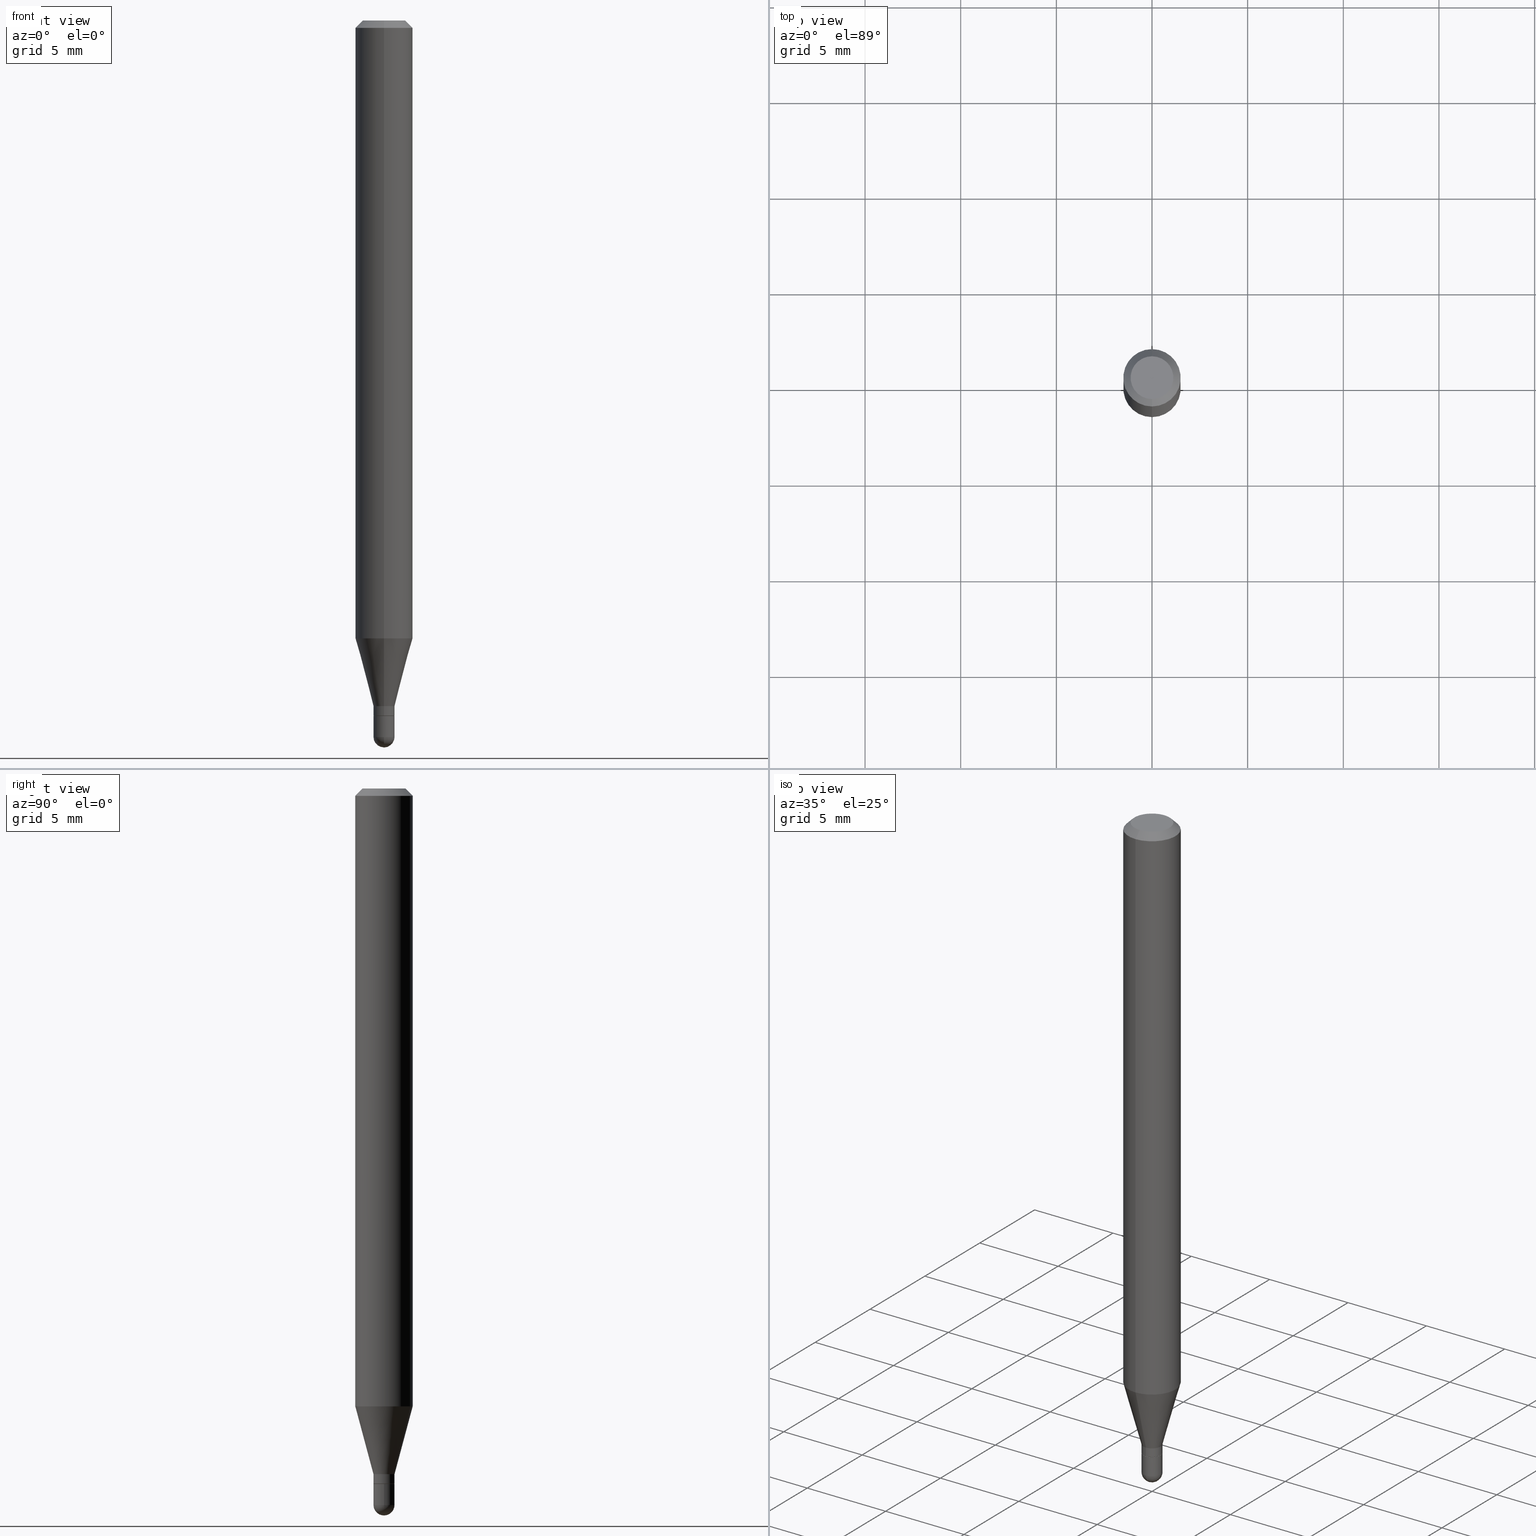
[diagram: canonical four-view strip — front | top / right | iso, engineering-drawing reading convention]
A machine part, canonical four-view strip (front | top / right | iso — engineering-drawing reading convention). The complete STEP part file that produces these views, byte-faithful:
ISO-10303-21;
HEADER;
FILE_DESCRIPTION (( 'STEP AP203' ),
    '1' );
FILE_NAME ('01928.STEP',
    '2024-03-07T19:44:47',
    ( '' ),
    ( '' ),
    'SwSTEP 2.0',
    'SolidWorks 2023',
    '' );
FILE_SCHEMA (( 'CONFIG_CONTROL_DESIGN' ));
ENDSEC;

DATA;
#1 = VECTOR ( 'NONE', #492, 39.37007874015748143 ) ;
#2 = ORIENTED_EDGE ( 'NONE', *, *, #5, .T. ) ;
#3 = VECTOR ( 'NONE', #393, 39.37007874015748143 ) ;
#4 = AXIS2_PLACEMENT_3D ( 'NONE', #499, #120, #337 ) ;
#5 = EDGE_CURVE ( 'NONE', #225, #342, #131, .T. ) ;
#6 = COORDINATED_UNIVERSAL_TIME_OFFSET ( 5, 0, .BEHIND. ) ;
#7 = FACE_OUTER_BOUND ( 'NONE', #296, .T. ) ;
#8 = DATE_AND_TIME ( #356, #80 ) ;
#9 = DIRECTION ( 'NONE',  ( 1.000000000000000000, -6.982962677686267499E-15, 4.876176775795936353E-29 ) ) ;
#10 = AXIS2_PLACEMENT_3D ( 'NONE', #46, #396, #359 ) ;
#11 = DIRECTION ( 'NONE',  ( -2.445429181695314527E-29, 3.491538083367856532E-15, 1.000000000000000000 ) ) ;
#12 = DIRECTION ( 'NONE',  ( -2.445429181695314527E-29, 3.491538083367856926E-15, 1.000000000000000000 ) ) ;
#13 = APPROVAL_STATUS ( 'not_yet_approved' ) ;
#14 = DIRECTION ( 'NONE',  ( -2.445429181695314527E-29, 3.491538083367856926E-15, 1.000000000000000000 ) ) ;
#15 = DIRECTION ( 'NONE',  ( -2.445429181695314527E-29, 3.491538083367856926E-15, 1.000000000000000000 ) ) ;
#16 = LINE ( 'NONE', #164, #66 ) ;
#17 = DIRECTION ( 'NONE',  ( -6.982962677686265922E-15, -1.000000000000000000, 3.491538083367856532E-15 ) ) ;
#18 = CALENDAR_DATE ( 2024, 7, 3 ) ;
#19 = PRODUCT_DEFINITION ( 'UNKNOWN', '', #382, #316 ) ;
#20 = CARTESIAN_POINT ( 'NONE',  ( 3.605721481279674399E-29, -5.148014660057275794E-15, -1.474449999999999816 ) ) ;
#21 = AXIS2_PLACEMENT_3D ( 'NONE', #447, #88, #78 ) ;
#22 = ORIENTED_EDGE ( 'NONE', *, *, #29, .F. ) ;
#23 = ADVANCED_FACE ( 'NONE', ( #85 ), #106, .T. ) ;
#24 = MECHANICAL_CONTEXT ( 'NONE', #162, 'mechanical' ) ;
#25 = FACE_OUTER_BOUND ( 'NONE', #190, .T. ) ;
#26 = DIRECTION ( 'NONE',  ( -6.982962677686265133E-15, -1.000000000000000000, 0.000000000000000000 ) ) ;
#27 = AXIS2_PLACEMENT_3D ( 'NONE', #309, #417, #374 ) ;
#28 = DIRECTION ( 'NONE',  ( -2.445429181695314527E-29, 3.491538083367856926E-15, 1.000000000000000000 ) ) ;
#29 = EDGE_CURVE ( 'NONE', #213, #342, #39, .T. ) ;
#30 = DIRECTION ( 'NONE',  ( -2.445468806185136597E-29, 3.491481338843145583E-15, 1.000000000000000000 ) ) ;
#31 = VERTEX_POINT ( 'NONE', #189 ) ;
#32 = ORIENTED_EDGE ( 'NONE', *, *, #261, .T. ) ;
#33 = AXIS2_PLACEMENT_3D ( 'NONE', #175, #102, #397 ) ;
#34 = ORIENTED_EDGE ( 'NONE', *, *, #267, .T. ) ;
#35 = VERTEX_POINT ( 'NONE', #158 ) ;
#36 = EDGE_CURVE ( 'NONE', #225, #478, #443, .T. ) ;
#37 = AXIS2_PLACEMENT_3D ( 'NONE', #511, #299, #145 ) ;
#38 = SECURITY_CLASSIFICATION ( '', '', #271 ) ;
#39 = LINE ( 'NONE', #200, #412 ) ;
#40 = DIRECTION ( 'NONE',  ( 1.000000000000000000, -6.982962677686270655E-15, 0.000000000000000000 ) ) ;
#41 = PERSON_AND_ORGANIZATION_ROLE ( 'design_supplier' ) ;
#42 = DIRECTION ( 'NONE',  ( -2.445429181695314527E-29, 3.491538083367856926E-15, 1.000000000000000000 ) ) ;
#43 = DIRECTION ( 'NONE',  ( -2.445429181695314527E-29, 3.491538083367856532E-15, 1.000000000000000000 ) ) ;
#44 = CARTESIAN_POINT ( 'NONE',  ( -4.123439461173736383E-16, -0.05905000000000005383, -0.01499999999999981730 ) ) ;
#45 = DIRECTION ( 'NONE',  ( -1.000000000000000000, 6.982962677686265922E-15, -4.883557194083112340E-29 ) ) ;
#46 = CARTESIAN_POINT ( 'NONE',  ( 3.668143772542977098E-31, -5.237307125051793302E-17, -0.01500000000000002373 ) ) ;
#47 = DIRECTION ( 'NONE',  ( -6.982962677686265133E-15, -1.000000000000000000, 0.000000000000000000 ) ) ;
#48 = CIRCLE ( 'NONE', #280, 0.05904999999999999832 ) ;
#49 = DIRECTION ( 'NONE',  ( -6.982962677686265133E-15, -1.000000000000000000, 3.491538083367856532E-15 ) ) ;
#50 = DIRECTION ( 'NONE',  ( 1.000000000000000000, -6.982962677686269866E-15, 0.000000000000000000 ) ) ;
#51 = CARTESIAN_POINT ( 'NONE',  ( 3.499653701924164183E-29, -4.996740151107738983E-15, -1.431100000000000039 ) ) ;
#52 = APPROVAL_ROLE ( '' ) ;
#53 = VERTEX_POINT ( 'NONE', #93 ) ;
#54 = DIRECTION ( 'NONE',  ( 4.937700262164548042E-15, 0.7071067811865451302, -0.7071067811865499042 ) ) ;
#55 = CC_DESIGN_PERSON_AND_ORGANIZATION_ASSIGNMENT ( #391, #41, ( #382 ) ) ;
#56 = FACE_OUTER_BOUND ( 'NONE', #96, .T. ) ;
#57 = CARTESIAN_POINT ( 'NONE',  ( 3.603870046263601126E-29, -5.150666020377430166E-15, -1.474449999999999816 ) ) ;
#58 = CARTESIAN_POINT ( 'NONE',  ( 3.499653701924164183E-29, -4.996740151107738983E-15, -1.431100000000000039 ) ) ;
#59 = DIRECTION ( 'NONE',  ( -2.445468806185136597E-29, 3.491481338843145583E-15, 1.000000000000000000 ) ) ;
#60 = EDGE_CURVE ( 'NONE', #347, #104, #451, .T. ) ;
#61 = CIRCLE ( 'NONE', #399, 0.04404999999999999888 ) ;
#62 = VERTEX_POINT ( 'NONE', #450 ) ;
#63 = DIRECTION ( 'NONE',  ( 6.982962677686265922E-15, 1.000000000000000000, -3.505890868245046092E-15 ) ) ;
#64 = ORIENTED_EDGE ( 'NONE', *, *, #36, .T. ) ;
#65 = CARTESIAN_POINT ( 'NONE',  ( -4.123439461173739834E-16, -0.05904999999999999832, 2.061753238228719465E-16 ) ) ;
#66 = VECTOR ( 'NONE', #170, 39.37007874015748143 ) ;
#67 = CARTESIAN_POINT ( 'NONE',  ( 4.195754854663703572E-16, 0.05904999999999994281, -0.01500000000000023016 ) ) ;
#68 = ORIENTED_EDGE ( 'NONE', *, *, #267, .F. ) ;
#69 = SHAPE_DEFINITION_REPRESENTATION ( #166, #434 ) ;
#70 = ORIENTED_EDGE ( 'NONE', *, *, #349, .F. ) ;
#71 = DIRECTION ( 'NONE',  ( 1.000000000000000000, 0.000000000000000000, 0.000000000000000000 ) ) ;
#72 = AXIS2_PLACEMENT_3D ( 'NONE', #201, #291, #123 ) ;
#73 = ORIENTED_EDGE ( 'NONE', *, *, #221, .T. ) ;
#74 = PERSON_AND_ORGANIZATION ( #362, #245 ) ;
#75 = EDGE_CURVE ( 'NONE', #463, #347, #247, .T. ) ;
#76 = VECTOR ( 'NONE', #11, 39.37007874015748143 ) ;
#77 = AXIS2_PLACEMENT_3D ( 'NONE', #326, #45, #488 ) ;
#78 = DIRECTION ( 'NONE',  ( 7.105427357601001070E-15, 1.000000000000000000, 0.000000000000000000 ) ) ;
#79 = DATE_AND_TIME ( #18, #308 ) ;
#80 = LOCAL_TIME ( 14, 44, 47.00000000000000000, #83 ) ;
#81 = EDGE_CURVE ( 'NONE', #304, #62, #323, .T. ) ;
#82 = DIRECTION ( 'NONE',  ( -2.445429181695314527E-29, 3.491538083367856926E-15, 1.000000000000000000 ) ) ;
#83 = COORDINATED_UNIVERSAL_TIME_OFFSET ( 5, 0, .BEHIND. ) ;
#84 = ORIENTED_EDGE ( 'NONE', *, *, #421, .F. ) ;
#85 = FACE_OUTER_BOUND ( 'NONE', #300, .T. ) ;
#86 = DIRECTION ( 'NONE',  ( -2.445468806185136597E-29, 3.491481338843145583E-15, 1.000000000000000000 ) ) ;
#87 = CARTESIAN_POINT ( 'NONE',  ( 3.109415291670556053E-29, -4.439565042054361610E-15, -1.271521299796924742 ) ) ;
#88 = DIRECTION ( 'NONE',  ( 1.000000000000000000, -7.105427357601001070E-15, 4.926315508542082329E-29 ) ) ;
#89 = PERSON_AND_ORGANIZATION ( #362, #245 ) ;
#90 = DIRECTION ( 'NONE',  ( -2.445468806185136597E-29, 3.491481338843145583E-15, 1.000000000000000000 ) ) ;
#91 = CARTESIAN_POINT ( 'NONE',  ( -1.476896606330294964E-16, -0.02115000000000499467, -1.431100000000000039 ) ) ;
#92 = PLANE ( 'NONE',  #439 ) ;
#93 = CARTESIAN_POINT ( 'NONE',  ( -1.511811419718711477E-16, -0.02165000000000508185, -1.474449999999999816 ) ) ;
#94 = ADVANCED_FACE ( 'NONE', ( #330 ), #253, .T. ) ;
#95 = DIRECTION ( 'NONE',  ( 6.982962677686265922E-15, 1.000000000000000000, -3.491538083367856532E-15 ) ) ;
#96 = EDGE_LOOP ( 'NONE', ( #84, #427, #344, #68 ) ) ;
#97 = ORIENTED_EDGE ( 'NONE', *, *, #239, .T. ) ;
#98 = CARTESIAN_POINT ( 'NONE',  ( 3.668143772542977098E-31, -5.237307125051793302E-17, -0.01500000000000002373 ) ) ;
#99 = CONICAL_SURFACE ( 'NONE', #381, 0.02114999999999999519, 0.7853981633974739252 ) ;
#100 = AXIS2_PLACEMENT_3D ( 'NONE', #406, #208, #167 ) ;
#101 = ORIENTED_EDGE ( 'NONE', *, *, #239, .F. ) ;
#102 = DIRECTION ( 'NONE',  ( -2.445468806185136597E-29, 3.491481338843145583E-15, 1.000000000000000000 ) ) ;
#103 = ORIENTED_EDGE ( 'NONE', *, *, #479, .F. ) ;
#104 = VERTEX_POINT ( 'NONE', #44 ) ;
#105 = ADVANCED_FACE ( 'NONE', ( #292 ), #99, .T. ) ;
#106 = CONICAL_SURFACE ( 'NONE', #333, 0.02114999999999999519, 0.7853981633974739252 ) ;
#107 = DIRECTION ( 'NONE',  ( -2.445429181695314527E-29, 3.491538083367856532E-15, 1.000000000000000000 ) ) ;
#108 = VECTOR ( 'NONE', #43, 39.37007874015748143 ) ;
#109 = EDGE_LOOP ( 'NONE', ( #317, #274 ) ) ;
#110 = ADVANCED_FACE ( 'NONE', ( #256 ), #159, .T. ) ;
#111 = CARTESIAN_POINT ( 'NONE',  ( -0.02164999999999999217, 1.538325022920616346E-16, -1.064949447040186676E-30 ) ) ;
#112 = UNCERTAINTY_MEASURE_WITH_UNIT (LENGTH_MEASURE( 1.000000000000000082E-05 ), #269, 'distance_accuracy_value', 'NONE');
#113 = VERTEX_POINT ( 'NONE', #481 ) ;
#114 = ORIENTED_EDGE ( 'NONE', *, *, #479, .T. ) ;
#115 = CIRCLE ( 'NONE', #77, 0.02164999999999987421 ) ;
#116 = ORIENTED_EDGE ( 'NONE', *, *, #118, .F. ) ;
#117 = PRODUCT_RELATED_PRODUCT_CATEGORY ( 'detail', '', ( #302 ) ) ;
#118 = EDGE_CURVE ( 'NONE', #104, #347, #380, .T. ) ;
#119 = CIRCLE ( 'NONE', #350, 0.02164999999999999217 ) ;
#120 = DIRECTION ( 'NONE',  ( -2.445429181695314527E-29, 3.491538083367856926E-15, 1.000000000000000000 ) ) ;
#121 = DIRECTION ( 'NONE',  ( 5.024295867788190974E-15, 0.7071067811865681119, 0.7071067811865270336 ) ) ;
#122 = ORIENTED_EDGE ( 'NONE', *, *, #221, .F. ) ;
#123 = DIRECTION ( 'NONE',  ( -6.982962677686265133E-15, -1.000000000000000000, 0.000000000000000000 ) ) ;
#124 = CARTESIAN_POINT ( 'NONE',  ( 3.668143772542977098E-31, -5.237307125051793302E-17, -0.01500000000000002373 ) ) ;
#125 = LINE ( 'NONE', #286, #1 ) ;
#126 = CARTESIAN_POINT ( 'NONE',  ( 3.498430987333316827E-29, -4.994994382066056232E-15, -1.430600000000000094 ) ) ;
#127 = APPROVAL_STATUS ( 'not_yet_approved' ) ;
#128 = ADVANCED_FACE ( 'NONE', ( #319 ), #355, .T. ) ;
#129 = ADVANCED_FACE ( 'NONE', ( #7 ), #343, .T. ) ;
#130 = CARTESIAN_POINT ( 'NONE',  ( 1.520561454526960924E-16, 0.02114999999999499572, -1.431100000000000039 ) ) ;
#131 = CIRCLE ( 'NONE', #153, 0.02164999999999991931 ) ;
#132 = VECTOR ( 'NONE', #107, 39.37007874015748143 ) ;
#133 = APPROVAL_PERSON_ORGANIZATION ( #139, #182, #298 ) ;
#134 = CARTESIAN_POINT ( 'NONE',  ( 3.599717260347271507E-16, 0.04404999999999999888, -1.776619958574267204E-16 ) ) ;
#135 = DIRECTION ( 'NONE',  ( 2.445429181695314527E-29, -3.491538083367856926E-15, -1.000000000000000000 ) ) ;
#136 = DIRECTION ( 'NONE',  ( -2.445429181695314527E-29, 3.491538083367856926E-15, 1.000000000000000000 ) ) ;
#137 = ORIENTED_EDGE ( 'NONE', *, *, #349, .T. ) ;
#138 = FACE_OUTER_BOUND ( 'NONE', #474, .T. ) ;
#139 = PERSON_AND_ORGANIZATION ( #362, #245 ) ;
#140 = PLANE ( 'NONE',  #255 ) ;
#141 = ORIENTED_EDGE ( 'NONE', *, *, #75, .F. ) ;
#142 = AXIS2_PLACEMENT_3D ( 'NONE', #57, #390, #493 ) ;
#143 = ORIENTED_EDGE ( 'NONE', *, *, #363, .F. ) ;
#144 = EDGE_CURVE ( 'NONE', #213, #251, #154, .T. ) ;
#145 = DIRECTION ( 'NONE',  ( -6.982962677686266711E-15, -1.000000000000000000, 3.491538083367856926E-15 ) ) ;
#146 = EDGE_CURVE ( 'NONE', #342, #225, #413, .T. ) ;
#147 = EDGE_LOOP ( 'NONE', ( #507, #383, #116, #314 ) ) ;
#148 = APPROVAL_DATE_TIME ( #348, #182 ) ;
#149 = ADVANCED_FACE ( 'NONE', ( #281 ), #205, .T. ) ;
#150 = AXIS2_PLACEMENT_3D ( 'NONE', #501, #90, #171 ) ;
#151 = ORIENTED_EDGE ( 'NONE', *, *, #146, .T. ) ;
#152 = ORIENTED_EDGE ( 'NONE', *, *, #144, .F. ) ;
#153 = AXIS2_PLACEMENT_3D ( 'NONE', #352, #42, #486 ) ;
#154 = CIRCLE ( 'NONE', #4, 0.02114999999999999519 ) ;
#155 = CC_DESIGN_PERSON_AND_ORGANIZATION_ASSIGNMENT ( #231, #235, ( #382 ) ) ;
#156 = DATE_AND_TIME ( #288, #335 ) ;
#157 = CARTESIAN_POINT ( 'NONE',  ( 0.000000000000000000, 0.000000000000000000, 0.000000000000000000 ) ) ;
#158 = CARTESIAN_POINT ( 'NONE',  ( -3.536586717851222218E-16, -0.04404999999999999888, 1.299425092872814422E-16 ) ) ;
#159 = CONICAL_SURFACE ( 'NONE', #227, 0.05904999999999999832, 0.7853981633974483900 ) ;
#160 = ORIENTED_EDGE ( 'NONE', *, *, #197, .F. ) ;
#161 = VECTOR ( 'NONE', #54, 39.37007874015748143 ) ;
#162 = APPLICATION_CONTEXT ( 'configuration controlled 3d designs of mechanical parts and assemblies' ) ;
#163 = CIRCLE ( 'NONE', #358, 0.02165000000000018993 ) ;
#164 = CARTESIAN_POINT ( 'NONE',  ( -1.476896606330294964E-16, -0.02115000000000499467, -1.431100000000000039 ) ) ;
#165 = CC_DESIGN_APPROVAL ( #182, ( #38 ) ) ;
#166 = PRODUCT_DEFINITION_SHAPE ( 'NONE', 'NONE',  #19 ) ;
#167 = DIRECTION ( 'NONE',  ( -6.982962677686266711E-15, -1.000000000000000000, 3.491538083367856926E-15 ) ) ;
#168 = COORDINATED_UNIVERSAL_TIME_OFFSET ( 5, 0, .BEHIND. ) ;
#169 = ADVANCED_FACE ( 'NONE', ( #441 ), #211, .T. ) ;
#170 = DIRECTION ( 'NONE',  ( -4.937700262164674260E-15, -0.7071067811865632269, 0.7071067811865319186 ) ) ;
#171 = DIRECTION ( 'NONE',  ( 1.000000000000000000, -6.982962677686267499E-15, 4.876176775795936353E-29 ) ) ;
#172 = DIRECTION ( 'NONE',  ( -6.982962677686265133E-15, -1.000000000000000000, 0.000000000000000000 ) ) ;
#173 = COORDINATED_UNIVERSAL_TIME_OFFSET ( 5, 0, .BEHIND. ) ;
#174 = CIRCLE ( 'NONE', #72, 0.02165000000000018993 ) ;
#175 = CARTESIAN_POINT ( 'NONE',  ( 3.499710408531548465E-29, -4.996658944018425519E-15, -1.431100000000000039 ) ) ;
#176 = ORIENTED_EDGE ( 'NONE', *, *, #421, .T. ) ;
#177 = DIRECTION ( 'NONE',  ( -2.445429181695314527E-29, 3.491538083367856926E-15, 1.000000000000000000 ) ) ;
#178 = LINE ( 'NONE', #341, #194 ) ;
#179 = ORIENTED_EDGE ( 'NONE', *, *, #331, .T. ) ;
#180 = DIMENSIONAL_EXPONENTS ( 1.000000000000000000, 0.000000000000000000, 0.000000000000000000, 0.000000000000000000, 0.000000000000000000, 0.000000000000000000, 0.000000000000000000 ) ;
#181 = DIRECTION ( 'NONE',  ( -1.000000000000000000, 6.982962677686265922E-15, -4.876176775795935793E-29 ) ) ;
#182 = APPROVAL ( #13, 'UNSPECIFIED' ) ;
#183 = EDGE_LOOP ( 'NONE', ( #143, #466, #34, #192, #122 ) ) ;
#184 = CARTESIAN_POINT ( 'NONE',  ( 1.511811419719426382E-16, 0.02164999999999499963, -1.431100000000000039 ) ) ;
#185 = EDGE_CURVE ( 'NONE', #240, #31, #376, .T. ) ;
#186 = DIRECTION ( 'NONE',  ( 1.000000000000000000, -6.982962677686270655E-15, 0.000000000000000000 ) ) ;
#187 = VERTEX_POINT ( 'NONE', #370 ) ;
#188 = AXIS2_PLACEMENT_3D ( 'NONE', #498, #293, #95 ) ;
#189 = CARTESIAN_POINT ( 'NONE',  ( -4.123439461173429220E-16, -0.05905000000000444615, -1.271521299796924298 ) ) ;
#190 = EDGE_LOOP ( 'NONE', ( #114, #73 ) ) ;
#191 = APPLICATION_PROTOCOL_DEFINITION ( 'international standard', 'config_control_design', 1994, #162 ) ;
#192 = ORIENTED_EDGE ( 'NONE', *, *, #81, .T. ) ;
#193 = ORIENTED_EDGE ( 'NONE', *, *, #233, .F. ) ;
#194 = VECTOR ( 'NONE', #469, 39.37007874015748854 ) ;
#195 = CC_DESIGN_DATE_AND_TIME_ASSIGNMENT ( #361, #502, ( #38 ) ) ;
#196 = EDGE_LOOP ( 'NONE', ( #418, #410, #379, #338 ) ) ;
#197 = EDGE_CURVE ( 'NONE', #476, #187, #452, .T. ) ;
#198 = FACE_OUTER_BOUND ( 'NONE', #444, .T. ) ;
#199 = APPROVAL_ROLE ( '' ) ;
#200 = CARTESIAN_POINT ( 'NONE',  ( 1.502797886132961362E-16, 0.02114999999999499572, -1.431100000000000039 ) ) ;
#201 = CARTESIAN_POINT ( 'NONE',  ( 3.450745118290257068E-29, -4.926909389440380826E-15, -1.411099999999999577 ) ) ;
#202 = DIRECTION ( 'NONE',  ( -1.807323732225328562E-15, -0.2588190451025179639, 0.9659258262890690894 ) ) ;
#203 = AXIS2_PLACEMENT_3D ( 'NONE', #503, #419, #504 ) ;
#204 = AXIS2_PLACEMENT_3D ( 'NONE', #287, #448, #455 ) ;
#205 = CYLINDRICAL_SURFACE ( 'NONE', #100, 0.02165000000000005115 ) ;
#206 = EDGE_CURVE ( 'NONE', #35, #104, #489, .T. ) ;
#207 = FACE_OUTER_BOUND ( 'NONE', #183, .T. ) ;
#208 = DIRECTION ( 'NONE',  ( -2.445429181695314527E-29, 3.491538083367856926E-15, 1.000000000000000000 ) ) ;
#209 = APPROVAL_DATE_TIME ( #156, #320 ) ;
#210 = CARTESIAN_POINT ( 'NONE',  ( 0.02164999999999999217, -1.511811419719076325E-16, 1.055692271959819788E-30 ) ) ;
#211 = CYLINDRICAL_SURFACE ( 'NONE', #228, 0.02164999999999999217 ) ;
#212 = CARTESIAN_POINT ( 'NONE',  ( 3.655888728409472200E-29, -5.227582271523460823E-15, -1.496099999999999541 ) ) ;
#213 = VERTEX_POINT ( 'NONE', #130 ) ;
#214 = VECTOR ( 'NONE', #202, 39.37007874015748854 ) ;
#215 = DIRECTION ( 'NONE',  ( -6.982962677686265922E-15, -1.000000000000000000, 3.491538083367856926E-15 ) ) ;
#216 = APPROVAL_PERSON_ORGANIZATION ( #279, #320, #199 ) ;
#217 = CARTESIAN_POINT ( 'NONE',  ( 3.450745118290257068E-29, -4.926909389440380826E-15, -1.411099999999999577 ) ) ;
#218 = ORIENTED_EDGE ( 'NONE', *, *, #363, .T. ) ;
#219 = AXIS2_PLACEMENT_3D ( 'NONE', #20, #234, #40 ) ;
#220 = CC_DESIGN_SECURITY_CLASSIFICATION ( #38, ( #382 ) ) ;
#221 = EDGE_CURVE ( 'NONE', #351, #62, #263, .T. ) ;
#222 = ORIENTED_EDGE ( 'NONE', *, *, #5, .F. ) ;
#223 = CARTESIAN_POINT ( 'NONE',  ( 3.605721481279674399E-29, -5.148014660057275794E-15, -1.474449999999999816 ) ) ;
#224 = VERTEX_POINT ( 'NONE', #487 ) ;
#225 = VERTEX_POINT ( 'NONE', #236 ) ;
#226 = CC_DESIGN_DATE_AND_TIME_ASSIGNMENT ( #8, #449, ( #19 ) ) ;
#227 = AXIS2_PLACEMENT_3D ( 'NONE', #98, #458, #63 ) ;
#228 = AXIS2_PLACEMENT_3D ( 'NONE', #157, #86, #9 ) ;
#229 = CIRCLE ( 'NONE', #27, 0.02164999999999999217 ) ;
#230 = ORIENTED_EDGE ( 'NONE', *, *, #336, .T. ) ;
#231 = PERSON_AND_ORGANIZATION ( #362, #245 ) ;
#232 = EDGE_CURVE ( 'NONE', #251, #225, #16, .T. ) ;
#233 = EDGE_CURVE ( 'NONE', #240, #347, #322, .T. ) ;
#234 = DIRECTION ( 'NONE',  ( -2.445468806185136597E-29, 3.491481338843145583E-15, 1.000000000000000000 ) ) ;
#235 = PERSON_AND_ORGANIZATION_ROLE ( 'creator' ) ;
#236 = CARTESIAN_POINT ( 'NONE',  ( -1.511811419718726268E-16, -0.02165000000000499164, -1.430600000000000094 ) ) ;
#237 = APPROVAL_DATE_TIME ( #79, #414 ) ;
#238 = DIRECTION ( 'NONE',  ( -6.982962677686266711E-15, -1.000000000000000000, 0.000000000000000000 ) ) ;
#239 = EDGE_CURVE ( 'NONE', #478, #113, #174, .T. ) ;
#240 = VERTEX_POINT ( 'NONE', #454 ) ;
#241 = CARTESIAN_POINT ( 'NONE',  ( 3.499653701924164183E-29, -4.996740151107738983E-15, -1.431100000000000039 ) ) ;
#242 = CARTESIAN_POINT ( 'NONE',  ( 3.668143772542977098E-31, -5.237307125051793302E-17, -0.01500000000000002373 ) ) ;
#243 = DIRECTION ( 'NONE',  ( -2.445429181695314527E-29, 3.491538083367856926E-15, 1.000000000000000000 ) ) ;
#244 = AXIS2_PLACEMENT_3D ( 'NONE', #242, #135, #436 ) ;
#245 = ORGANIZATION ( 'UNSPECIFIED', 'UNSPECIFIED', '' ) ;
#246 = DIRECTION ( 'NONE',  ( -4.851104656540964275E-15, -0.7071067811865500152, -0.7071067811865450192 ) ) ;
#247 = LINE ( 'NONE', #404, #161 ) ;
#248 = DIRECTION ( 'NONE',  ( 1.000000000000000000, -6.982962677686270655E-15, 0.000000000000000000 ) ) ;
#249 = DIRECTION ( 'NONE',  ( -2.445429181695314527E-29, 3.491538083367856926E-15, 1.000000000000000000 ) ) ;
#250 = DIRECTION ( 'NONE',  ( -2.445429181695314527E-29, 3.491538083367856926E-15, 1.000000000000000000 ) ) ;
#251 = VERTEX_POINT ( 'NONE', #91 ) ;
#252 = LENGTH_MEASURE_WITH_UNIT ( LENGTH_MEASURE( 0.02539999999999999897 ), #407 );
#253 = CYLINDRICAL_SURFACE ( 'NONE', #387, 0.05904999999999999832 ) ;
#254 = ORIENTED_EDGE ( 'NONE', *, *, #424, .F. ) ;
#255 = AXIS2_PLACEMENT_3D ( 'NONE', #184, #259, #181 ) ;
#256 = FACE_OUTER_BOUND ( 'NONE', #196, .T. ) ;
#257 = FACE_OUTER_BOUND ( 'NONE', #306, .T. ) ;
#258 = ORIENTED_EDGE ( 'NONE', *, *, #377, .T. ) ;
#259 = DIRECTION ( 'NONE',  ( 2.438088387897960049E-29, -3.491481338843145188E-15, -1.000000000000000000 ) ) ;
#260 = EDGE_LOOP ( 'NONE', ( #2, #386, #101, #283 ) ) ;
#261 = EDGE_CURVE ( 'NONE', #113, #478, #163, .T. ) ;
#262 = CARTESIAN_POINT ( 'NONE',  ( 0.02164999999999999217, -5.223517944009758388E-15, -1.474449999999999816 ) ) ;
#263 = CIRCLE ( 'NONE', #334, 0.02164999999999999564 ) ;
#264 = CC_DESIGN_APPROVAL ( #414, ( #382 ) ) ;
#265 = EDGE_LOOP ( 'NONE', ( #415, #152 ) ) ;
#266 = DIRECTION ( 'NONE',  ( -2.445468806185136877E-29, 3.491481338843145188E-15, 1.000000000000000000 ) ) ;
#267 = EDGE_CURVE ( 'NONE', #53, #304, #353, .T. ) ;
#268 = ORIENTED_EDGE ( 'NONE', *, *, #369, .F. ) ;
#269 =( CONVERSION_BASED_UNIT ( 'INCH', #252 ) LENGTH_UNIT ( ) NAMED_UNIT ( #180 ) );
#270 = ORIENTED_EDGE ( 'NONE', *, *, #295, .T. ) ;
#271 = SECURITY_CLASSIFICATION_LEVEL ( 'unclassified' ) ;
#272 = VECTOR ( 'NONE', #266, 39.37007874015748143 ) ;
#273 = LOCAL_TIME ( 14, 44, 47.00000000000000000, #168 ) ;
#274 = ORIENTED_EDGE ( 'NONE', *, *, #369, .T. ) ;
#275 = CC_DESIGN_PERSON_AND_ORGANIZATION_ASSIGNMENT ( #437, #442, ( #19 ) ) ;
#276 = ADVANCED_FACE ( 'NONE', ( #198 ), #433, .T. ) ;
#277 = ORIENTED_EDGE ( 'NONE', *, *, #465, .F. ) ;
#278 = ADVANCED_FACE ( 'NONE', ( #25 ), #140, .F. ) ;
#279 = PERSON_AND_ORGANIZATION ( #362, #245 ) ;
#280 = AXIS2_PLACEMENT_3D ( 'NONE', #87, #243, #364 ) ;
#281 = FACE_OUTER_BOUND ( 'NONE', #260, .T. ) ;
#282 = DIRECTION ( 'NONE',  ( -6.982962677686265133E-15, -1.000000000000000000, 3.491538083367856532E-15 ) ) ;
#283 = ORIENTED_EDGE ( 'NONE', *, *, #36, .F. ) ;
#284 = CARTESIAN_POINT ( 'NONE',  ( 3.450745118290257068E-29, -4.926909389440380826E-15, -1.411099999999999577 ) ) ;
#285 = DIRECTION ( 'NONE',  ( -6.982962677686265922E-15, -1.000000000000000000, 3.505890868245046092E-15 ) ) ;
#286 = CARTESIAN_POINT ( 'NONE',  ( 1.538325022920620290E-16, 0.02165000000000005115, -7.559179950491428107E-17 ) ) ;
#287 = CARTESIAN_POINT ( 'NONE',  ( 0.000000000000000000, 0.000000000000000000, 0.000000000000000000 ) ) ;
#288 = CALENDAR_DATE ( 2024, 7, 3 ) ;
#289 = CARTESIAN_POINT ( 'NONE',  ( 3.605721481279674399E-29, -5.148014660057275794E-15, -1.474449999999999816 ) ) ;
#290 = AXIS2_PLACEMENT_3D ( 'NONE', #126, #12, #445 ) ;
#291 = DIRECTION ( 'NONE',  ( -2.445429181695314527E-29, 3.491538083367856926E-15, 1.000000000000000000 ) ) ;
#292 = FACE_OUTER_BOUND ( 'NONE', #420, .T. ) ;
#293 = DIRECTION ( 'NONE',  ( 2.445429181695314247E-29, -3.491538083367856532E-15, -1.000000000000000000 ) ) ;
#294 = DIRECTION ( 'NONE',  ( -2.445429181695314527E-29, 3.491538083367856926E-15, 1.000000000000000000 ) ) ;
#295 = EDGE_CURVE ( 'NONE', #251, #213, #372, .T. ) ;
#296 = EDGE_LOOP ( 'NONE', ( #268, #457, #395, #141 ) ) ;
#297 = ORIENTED_EDGE ( 'NONE', *, *, #377, .F. ) ;
#298 = APPROVAL_ROLE ( '' ) ;
#299 = DIRECTION ( 'NONE',  ( -2.445429181695314527E-29, 3.491538083367856926E-15, 1.000000000000000000 ) ) ;
#300 = EDGE_LOOP ( 'NONE', ( #270, #411, #222, #509 ) ) ;
#301 = VECTOR ( 'NONE', #246, 39.37007874015748143 ) ;
#302 = PRODUCT ( '01928', '01928', '', ( #24 ) ) ;
#303 = CC_DESIGN_APPROVAL ( #320, ( #19 ) ) ;
#304 = VERTEX_POINT ( 'NONE', #262 ) ;
#305 =( NAMED_UNIT ( * ) PLANE_ANGLE_UNIT ( ) SI_UNIT ( $, .RADIAN. ) );
#306 = EDGE_LOOP ( 'NONE', ( #339, #151, #64, #430 ) ) ;
#307 = AXIS2_PLACEMENT_3D ( 'NONE', #217, #28, #26 ) ;
#308 = LOCAL_TIME ( 14, 44, 47.00000000000000000, #367 ) ;
#309 = CARTESIAN_POINT ( 'NONE',  ( 3.605721481279674399E-29, -5.148014660057275794E-15, -1.474449999999999816 ) ) ;
#310 = EDGE_LOOP ( 'NONE', ( #193, #470, #485, #385 ) ) ;
#311 = ORIENTED_EDGE ( 'NONE', *, *, #146, .F. ) ;
#312 = CARTESIAN_POINT ( 'NONE',  ( 0.000000000000000000, 0.000000000000000000, 0.000000000000000000 ) ) ;
#313 = EDGE_CURVE ( 'NONE', #31, #104, #422, .T. ) ;
#314 = ORIENTED_EDGE ( 'NONE', *, *, #313, .F. ) ;
#315 = CIRCLE ( 'NONE', #505, 0.04404999999999999888 ) ;
#316 = DESIGN_CONTEXT ( 'detailed design', #510, 'design' ) ;
#317 = ORIENTED_EDGE ( 'NONE', *, *, #440, .T. ) ;
#318 = ADVANCED_FACE ( 'NONE', ( #257 ), #345, .T. ) ;
#319 = FACE_OUTER_BOUND ( 'NONE', #373, .T. ) ;
#320 = APPROVAL ( #127, 'UNSPECIFIED' ) ;
#321 = AXIS2_PLACEMENT_3D ( 'NONE', #124, #408, #285 ) ;
#322 = LINE ( 'NONE', #329, #108 ) ;
#323 = LINE ( 'NONE', #210, #3 ) ;
#324 = DIRECTION ( 'NONE',  ( 1.000000000000000000, -6.982962677686266711E-15, 4.883557194083113462E-29 ) ) ;
#325 = DIRECTION ( 'NONE',  ( -6.982962677686265922E-15, -1.000000000000000000, 4.626330217890369336E-15 ) ) ;
#326 = CARTESIAN_POINT ( 'NONE',  ( 3.603870046263601126E-29, -5.150666020377430166E-15, -1.474449999999999816 ) ) ;
#327 = DIRECTION ( 'NONE',  ( -6.982962677686266711E-15, -1.000000000000000000, 0.000000000000000000 ) ) ;
#328 = CC_DESIGN_PERSON_AND_ORGANIZATION_ASSIGNMENT ( #74, #384, ( #38 ) ) ;
#329 = CARTESIAN_POINT ( 'NONE',  ( 4.195754854663390985E-16, 0.05904999999999999832, -2.061753238228719465E-16 ) ) ;
#330 = FACE_OUTER_BOUND ( 'NONE', #147, .T. ) ;
#331 = EDGE_CURVE ( 'NONE', #304, #187, #229, .T. ) ;
#332 = PLANE ( 'NONE',  #188 ) ;
#333 = AXIS2_PLACEMENT_3D ( 'NONE', #241, #15, #327 ) ;
#334 = AXIS2_PLACEMENT_3D ( 'NONE', #401, #392, #50 ) ;
#335 = LOCAL_TIME ( 14, 44, 47.00000000000000000, #6 ) ;
#336 = EDGE_CURVE ( 'NONE', #113, #240, #178, .T. ) ;
#337 = DIRECTION ( 'NONE',  ( -6.982962677686266711E-15, -1.000000000000000000, 0.000000000000000000 ) ) ;
#338 = ORIENTED_EDGE ( 'NONE', *, *, #60, .T. ) ;
#339 = ORIENTED_EDGE ( 'NONE', *, *, #423, .F. ) ;
#340 = CALENDAR_DATE ( 2024, 7, 3 ) ;
#341 = CARTESIAN_POINT ( 'NONE',  ( 1.538325022920975278E-16, 0.02164999999999526331, -1.411099999999999577 ) ) ;
#342 = VERTEX_POINT ( 'NONE', #425 ) ;
#343 = CONICAL_SURFACE ( 'NONE', #244, 0.05904999999999999832, 0.7853981633974483900 ) ;
#344 = ORIENTED_EDGE ( 'NONE', *, *, #331, .F. ) ;
#345 = CYLINDRICAL_SURFACE ( 'NONE', #37, 0.02165000000000005115 ) ;
#346 = CARTESIAN_POINT ( 'NONE',  ( -0.02164999999999999564, -4.918504299745789342E-15, -1.431100000000000039 ) ) ;
#347 = VERTEX_POINT ( 'NONE', #67 ) ;
#348 = DATE_AND_TIME ( #512, #273 ) ;
#349 = EDGE_CURVE ( 'NONE', #187, #224, #438, .T. ) ;
#350 = AXIS2_PLACEMENT_3D ( 'NONE', #289, #59, #248 ) ;
#351 = VERTEX_POINT ( 'NONE', #346 ) ;
#352 = CARTESIAN_POINT ( 'NONE',  ( 3.498430987333316827E-29, -4.994994382066056232E-15, -1.430600000000000094 ) ) ;
#353 = CIRCLE ( 'NONE', #219, 0.02164999999999999217 ) ;
#354 = EDGE_LOOP ( 'NONE', ( #137, #218, #103, #435, #179 ) ) ;
#355 = SPHERICAL_SURFACE ( 'NONE', #142, 0.02164999999999987421 ) ;
#356 = CALENDAR_DATE ( 2024, 7, 3 ) ;
#357 = CARTESIAN_POINT ( 'NONE',  ( 3.109415291670556053E-29, -4.439565042054361610E-15, -1.271521299796924742 ) ) ;
#358 = AXIS2_PLACEMENT_3D ( 'NONE', #284, #249, #172 ) ;
#359 = DIRECTION ( 'NONE',  ( -6.982962677686265922E-15, -1.000000000000000000, 3.505890868245046092E-15 ) ) ;
#360 = FACE_OUTER_BOUND ( 'NONE', #310, .T. ) ;
#361 = DATE_AND_TIME ( #340, #462 ) ;
#362 = PERSON ( 'UNSPECIFIED', 'UNSPECIFIED', 'UNSPECIFIED', ('UNSPECIFIED'), ('UNSPECIFIED'), ('UNSPECIFIED') ) ;
#363 = EDGE_CURVE ( 'NONE', #224, #351, #471, .T. ) ;
#364 = DIRECTION ( 'NONE',  ( -6.982962677686265922E-15, -1.000000000000000000, 4.626330217890369336E-15 ) ) ;
#365 = CARTESIAN_POINT ( 'NONE',  ( -4.051124067684085231E-16, -0.05905000000000005383, -0.01499999999999981730 ) ) ;
#366 = DIRECTION ( 'NONE',  ( -2.445429181695314247E-29, 3.491538083367856532E-15, 1.000000000000000000 ) ) ;
#367 = COORDINATED_UNIVERSAL_TIME_OFFSET ( 5, 0, .BEHIND. ) ;
#368 = FACE_OUTER_BOUND ( 'NONE', #109, .T. ) ;
#369 = EDGE_CURVE ( 'NONE', #35, #463, #315, .T. ) ;
#370 = CARTESIAN_POINT ( 'NONE',  ( 1.538325022920972566E-16, 0.02164999999999478453, -1.474449999999999816 ) ) ;
#371 = CARTESIAN_POINT ( 'NONE',  ( -1.511811419718744510E-16, -0.02165000000000511654, -1.411099999999999577 ) ) ;
#372 = CIRCLE ( 'NONE', #203, 0.02114999999999999519 ) ;
#373 = EDGE_LOOP ( 'NONE', ( #160, #176, #277, #70 ) ) ;
#374 = DIRECTION ( 'NONE',  ( 1.000000000000000000, -6.982962677686270655E-15, 0.000000000000000000 ) ) ;
#375 =( NAMED_UNIT ( * ) SI_UNIT ( $, .STERADIAN. ) SOLID_ANGLE_UNIT ( ) );
#376 = CIRCLE ( 'NONE', #477, 0.05904999999999999832 ) ;
#377 = EDGE_CURVE ( 'NONE', #478, #31, #484, .T. ) ;
#378 = ORIENTED_EDGE ( 'NONE', *, *, #144, .T. ) ;
#379 = ORIENTED_EDGE ( 'NONE', *, *, #75, .T. ) ;
#380 = CIRCLE ( 'NONE', #10, 0.05904999999999999832 ) ;
#381 = AXIS2_PLACEMENT_3D ( 'NONE', #58, #177, #416 ) ;
#382 = PRODUCT_DEFINITION_FORMATION_WITH_SPECIFIED_SOURCE ( 'ANY', '', #302, .NOT_KNOWN. ) ;
#383 = ORIENTED_EDGE ( 'NONE', *, *, #233, .T. ) ;
#384 = PERSON_AND_ORGANIZATION_ROLE ( 'classification_officer' ) ;
#385 = ORIENTED_EDGE ( 'NONE', *, *, #60, .F. ) ;
#386 = ORIENTED_EDGE ( 'NONE', *, *, #423, .T. ) ;
#387 = AXIS2_PLACEMENT_3D ( 'NONE', #495, #250, #215 ) ;
#388 = AXIS2_PLACEMENT_3D ( 'NONE', #223, #30, #186 ) ;
#389 = ADVANCED_FACE ( 'NONE', ( #207 ), #394, .T. ) ;
#390 = DIRECTION ( 'NONE',  ( 1.000000000000000000, -6.982962677686266711E-15, 4.883557194083113462E-29 ) ) ;
#391 = PERSON_AND_ORGANIZATION ( #362, #245 ) ;
#392 = DIRECTION ( 'NONE',  ( -2.445468806185136597E-29, 3.491481338843145583E-15, 1.000000000000000000 ) ) ;
#393 = DIRECTION ( 'NONE',  ( -2.445468806185136877E-29, 3.491481338843145188E-15, 1.000000000000000000 ) ) ;
#394 = CYLINDRICAL_SURFACE ( 'NONE', #150, 0.02164999999999999217 ) ;
#395 = ORIENTED_EDGE ( 'NONE', *, *, #118, .T. ) ;
#396 = DIRECTION ( 'NONE',  ( -2.445429181695314527E-29, 3.491538083367856926E-15, 1.000000000000000000 ) ) ;
#397 = DIRECTION ( 'NONE',  ( 1.000000000000000000, -6.982962677686269866E-15, 0.000000000000000000 ) ) ;
#398 = CC_DESIGN_PERSON_AND_ORGANIZATION_ASSIGNMENT ( #468, #428, ( #302 ) ) ;
#399 = AXIS2_PLACEMENT_3D ( 'NONE', #400, #14, #49 ) ;
#400 = CARTESIAN_POINT ( 'NONE',  ( 5.834731249707548679E-46, -8.330720233921166360E-32, -2.385974328507265138E-17 ) ) ;
#401 = CARTESIAN_POINT ( 'NONE',  ( 3.499710408531548465E-29, -4.996658944018425519E-15, -1.431100000000000039 ) ) ;
#402 = FACE_OUTER_BOUND ( 'NONE', #265, .T. ) ;
#403 = APPROVAL_STATUS ( 'not_yet_approved' ) ;
#404 = CARTESIAN_POINT ( 'NONE',  ( 4.123439461173743285E-16, 0.05904999999999994975, -0.01500000000000023016 ) ) ;
#405 = ADVANCED_FACE ( 'NONE', ( #56 ), #409, .T. ) ;
#406 = CARTESIAN_POINT ( 'NONE',  ( 0.000000000000000000, 0.000000000000000000, 0.000000000000000000 ) ) ;
#407 =( LENGTH_UNIT ( ) NAMED_UNIT ( * ) SI_UNIT ( $, .METRE. ) );
#408 = DIRECTION ( 'NONE',  ( -2.445429181695314527E-29, 3.491538083367856926E-15, 1.000000000000000000 ) ) ;
#409 = SPHERICAL_SURFACE ( 'NONE', #497, 0.02164999999999987421 ) ;
#410 = ORIENTED_EDGE ( 'NONE', *, *, #440, .F. ) ;
#411 = ORIENTED_EDGE ( 'NONE', *, *, #29, .T. ) ;
#412 = VECTOR ( 'NONE', #121, 39.37007874015748143 ) ;
#413 = CIRCLE ( 'NONE', #290, 0.02164999999999991931 ) ;
#414 = APPROVAL ( #403, 'UNSPECIFIED' ) ;
#415 = ORIENTED_EDGE ( 'NONE', *, *, #295, .F. ) ;
#416 = DIRECTION ( 'NONE',  ( -6.982962677686266711E-15, -1.000000000000000000, 0.000000000000000000 ) ) ;
#417 = DIRECTION ( 'NONE',  ( -2.445468806185136597E-29, 3.491481338843145583E-15, 1.000000000000000000 ) ) ;
#418 = ORIENTED_EDGE ( 'NONE', *, *, #206, .F. ) ;
#419 = DIRECTION ( 'NONE',  ( -2.445429181695314527E-29, 3.491538083367856926E-15, 1.000000000000000000 ) ) ;
#420 = EDGE_LOOP ( 'NONE', ( #22, #378, #432, #311 ) ) ;
#421 = EDGE_CURVE ( 'NONE', #476, #53, #115, .T. ) ;
#422 = LINE ( 'NONE', #65, #132 ) ;
#423 = EDGE_CURVE ( 'NONE', #342, #113, #125, .T. ) ;
#424 = EDGE_CURVE ( 'NONE', #31, #240, #48, .T. ) ;
#425 = CARTESIAN_POINT ( 'NONE',  ( 1.538325022920955556E-16, 0.02164999999999485045, -1.430600000000000094 ) ) ;
#426 = MANIFOLD_SOLID_BREP ( 'Body-Move/Copy2[2]', #459 ) ;
#427 = ORIENTED_EDGE ( 'NONE', *, *, #197, .T. ) ;
#428 = PERSON_AND_ORGANIZATION_ROLE ( 'design_owner' ) ;
#429 = CARTESIAN_POINT ( 'NONE',  ( 5.834731249707548679E-46, -8.330720233921166360E-32, -2.385974328507265138E-17 ) ) ;
#430 = ORIENTED_EDGE ( 'NONE', *, *, #261, .F. ) ;
#431 = MANIFOLD_SOLID_BREP ( 'Body-Move/Copy2[1]', #496 ) ;
#432 = ORIENTED_EDGE ( 'NONE', *, *, #232, .T. ) ;
#433 = CONICAL_SURFACE ( 'NONE', #307, 0.02165000000000018993, 0.2617993877991500740 ) ;
#434 = ADVANCED_BREP_SHAPE_REPRESENTATION ( '01928', ( #431, #426, #483 ), #453 ) ;
#435 = ORIENTED_EDGE ( 'NONE', *, *, #81, .F. ) ;
#436 = DIRECTION ( 'NONE',  ( 6.982962677686265922E-15, 1.000000000000000000, -3.505890868245046092E-15 ) ) ;
#437 = PERSON_AND_ORGANIZATION ( #362, #245 ) ;
#438 = CIRCLE ( 'NONE', #388, 0.02164999999999999217 ) ;
#439 = AXIS2_PLACEMENT_3D ( 'NONE', #51, #366, #17 ) ;
#440 = EDGE_CURVE ( 'NONE', #463, #35, #61, .T. ) ;
#441 = FACE_OUTER_BOUND ( 'NONE', #354, .T. ) ;
#442 = PERSON_AND_ORGANIZATION_ROLE ( 'creator' ) ;
#443 = LINE ( 'NONE', #491, #76 ) ;
#444 = EDGE_LOOP ( 'NONE', ( #97, #230, #254, #297 ) ) ;
#445 = DIRECTION ( 'NONE',  ( -6.982962677686265922E-15, -1.000000000000000000, 0.000000000000000000 ) ) ;
#446 = CARTESIAN_POINT ( 'NONE',  ( 3.603870046263601126E-29, -5.150666020377430166E-15, -1.474449999999999816 ) ) ;
#447 = CARTESIAN_POINT ( 'NONE',  ( 3.603870046263601126E-29, -5.150666020377430166E-15, -1.474449999999999816 ) ) ;
#448 = DIRECTION ( 'NONE',  ( -2.445429181695314527E-29, 3.491538083367856926E-15, 1.000000000000000000 ) ) ;
#449 = DATE_TIME_ROLE ( 'creation_date' ) ;
#450 = CARTESIAN_POINT ( 'NONE',  ( 0.02164999999999999564, -5.147840085990333250E-15, -1.431100000000000039 ) ) ;
#451 = CIRCLE ( 'NONE', #321, 0.05904999999999999832 ) ;
#452 = CIRCLE ( 'NONE', #21, 0.02164999999999987421 ) ;
#453 =( GEOMETRIC_REPRESENTATION_CONTEXT ( 3 ) GLOBAL_UNCERTAINTY_ASSIGNED_CONTEXT ( ( #112 ) ) GLOBAL_UNIT_ASSIGNED_CONTEXT ( ( #269, #305, #375 ) ) REPRESENTATION_CONTEXT ( 'NONE', 'WORKASPACE' ) );
#454 = CARTESIAN_POINT ( 'NONE',  ( 4.195754854663700120E-16, 0.05904999999999554355, -1.271521299796924964 ) ) ;
#455 = DIRECTION ( 'NONE',  ( -6.982962677686265922E-15, -1.000000000000000000, 3.491538083367856926E-15 ) ) ;
#456 = CARTESIAN_POINT ( 'NONE',  ( -1.511811419718744510E-16, -0.02165000000000511654, -1.411099999999999577 ) ) ;
#457 = ORIENTED_EDGE ( 'NONE', *, *, #206, .T. ) ;
#458 = DIRECTION ( 'NONE',  ( 2.445429181695314527E-29, -3.491538083367856926E-15, -1.000000000000000000 ) ) ;
#459 = CLOSED_SHELL ( 'NONE', ( #149, #23, #129, #94, #276, #480, #500, #110, #467, #508, #105, #318 ) ) ;
#460 = AXIS2_PLACEMENT_3D ( 'NONE', #494, #294, #47 ) ;
#461 = CONICAL_SURFACE ( 'NONE', #460, 0.02165000000000018993, 0.2617993877991500740 ) ;
#462 = LOCAL_TIME ( 14, 44, 47.00000000000000000, #173 ) ;
#463 = VERTEX_POINT ( 'NONE', #134 ) ;
#464 = ORIENTED_EDGE ( 'NONE', *, *, #336, .F. ) ;
#465 = EDGE_CURVE ( 'NONE', #224, #53, #119, .T. ) ;
#466 = ORIENTED_EDGE ( 'NONE', *, *, #465, .T. ) ;
#467 = ADVANCED_FACE ( 'NONE', ( #368 ), #332, .F. ) ;
#468 = PERSON_AND_ORGANIZATION ( #362, #245 ) ;
#469 = DIRECTION ( 'NONE',  ( 1.839019923739598738E-15, 0.2588190451025247363, 0.9659258262890673130 ) ) ;
#470 = ORIENTED_EDGE ( 'NONE', *, *, #185, .T. ) ;
#471 = LINE ( 'NONE', #111, #272 ) ;
#472 = ORIENTED_EDGE ( 'NONE', *, *, #185, .F. ) ;
#473 = APPLICATION_PROTOCOL_DEFINITION ( 'international standard', 'config_control_design', 1994, #510 ) ;
#474 = EDGE_LOOP ( 'NONE', ( #464, #32, #258, #472 ) ) ;
#475 = DIRECTION ( 'NONE',  ( 0.000000000000000000, 0.000000000000000000, 1.000000000000000000 ) ) ;
#476 = VERTEX_POINT ( 'NONE', #212 ) ;
#477 = AXIS2_PLACEMENT_3D ( 'NONE', #357, #82, #325 ) ;
#478 = VERTEX_POINT ( 'NONE', #371 ) ;
#479 = EDGE_CURVE ( 'NONE', #62, #351, #482, .T. ) ;
#480 = ADVANCED_FACE ( 'NONE', ( #138 ), #461, .T. ) ;
#481 = CARTESIAN_POINT ( 'NONE',  ( 2.867039938792339301E-16, 0.02164999999999526331, -1.411099999999999577 ) ) ;
#482 = CIRCLE ( 'NONE', #33, 0.02164999999999999564 ) ;
#483 = AXIS2_PLACEMENT_3D ( 'NONE', #312, #475, #71 ) ;
#484 = LINE ( 'NONE', #456, #214 ) ;
#485 = ORIENTED_EDGE ( 'NONE', *, *, #313, .T. ) ;
#486 = DIRECTION ( 'NONE',  ( -6.982962677686265922E-15, -1.000000000000000000, 0.000000000000000000 ) ) ;
#487 = CARTESIAN_POINT ( 'NONE',  ( -0.02164999999999999217, -4.918504299745789342E-15, -1.474449999999999816 ) ) ;
#488 = DIRECTION ( 'NONE',  ( -6.982962677686266711E-15, -1.000000000000000000, 0.000000000000000000 ) ) ;
#489 = LINE ( 'NONE', #365, #301 ) ;
#490 = CYLINDRICAL_SURFACE ( 'NONE', #204, 0.05904999999999999832 ) ;
#491 = CARTESIAN_POINT ( 'NONE',  ( -1.511811419719080269E-16, -0.02165000000000005115, 7.559179950491428107E-17 ) ) ;
#492 = DIRECTION ( 'NONE',  ( -2.445429181695314527E-29, 3.491538083367856532E-15, 1.000000000000000000 ) ) ;
#493 = DIRECTION ( 'NONE',  ( -6.982962677686266711E-15, -1.000000000000000000, 0.000000000000000000 ) ) ;
#494 = CARTESIAN_POINT ( 'NONE',  ( 3.450745118290257068E-29, -4.926909389440380826E-15, -1.411099999999999577 ) ) ;
#495 = CARTESIAN_POINT ( 'NONE',  ( 0.000000000000000000, 0.000000000000000000, 0.000000000000000000 ) ) ;
#496 = CLOSED_SHELL ( 'NONE', ( #169, #405, #278, #128, #389 ) ) ;
#497 = AXIS2_PLACEMENT_3D ( 'NONE', #446, #324, #238 ) ;
#498 = CARTESIAN_POINT ( 'NONE',  ( 3.075995059520799729E-16, 0.04404999999999999888, -1.657321242148904193E-16 ) ) ;
#499 = CARTESIAN_POINT ( 'NONE',  ( 3.499653701924164183E-29, -4.996740151107738983E-15, -1.431100000000000039 ) ) ;
#500 = ADVANCED_FACE ( 'NONE', ( #360 ), #490, .T. ) ;
#501 = CARTESIAN_POINT ( 'NONE',  ( 0.000000000000000000, 0.000000000000000000, 0.000000000000000000 ) ) ;
#502 = DATE_TIME_ROLE ( 'classification_date' ) ;
#503 = CARTESIAN_POINT ( 'NONE',  ( 3.499653701924164183E-29, -4.996740151107738983E-15, -1.431100000000000039 ) ) ;
#504 = DIRECTION ( 'NONE',  ( -6.982962677686266711E-15, -1.000000000000000000, 0.000000000000000000 ) ) ;
#505 = AXIS2_PLACEMENT_3D ( 'NONE', #429, #136, #282 ) ;
#506 = APPROVAL_PERSON_ORGANIZATION ( #89, #414, #52 ) ;
#507 = ORIENTED_EDGE ( 'NONE', *, *, #424, .T. ) ;
#508 = ADVANCED_FACE ( 'NONE', ( #402 ), #92, .F. ) ;
#509 = ORIENTED_EDGE ( 'NONE', *, *, #232, .F. ) ;
#510 = APPLICATION_CONTEXT ( 'configuration controlled 3d designs of mechanical parts and assemblies' ) ;
#511 = CARTESIAN_POINT ( 'NONE',  ( 0.000000000000000000, 0.000000000000000000, 0.000000000000000000 ) ) ;
#512 = CALENDAR_DATE ( 2024, 7, 3 ) ;
ENDSEC;
END-ISO-10303-21;
